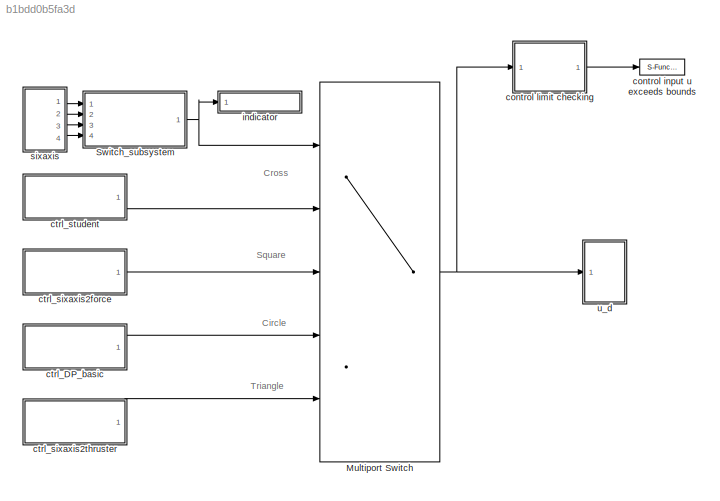
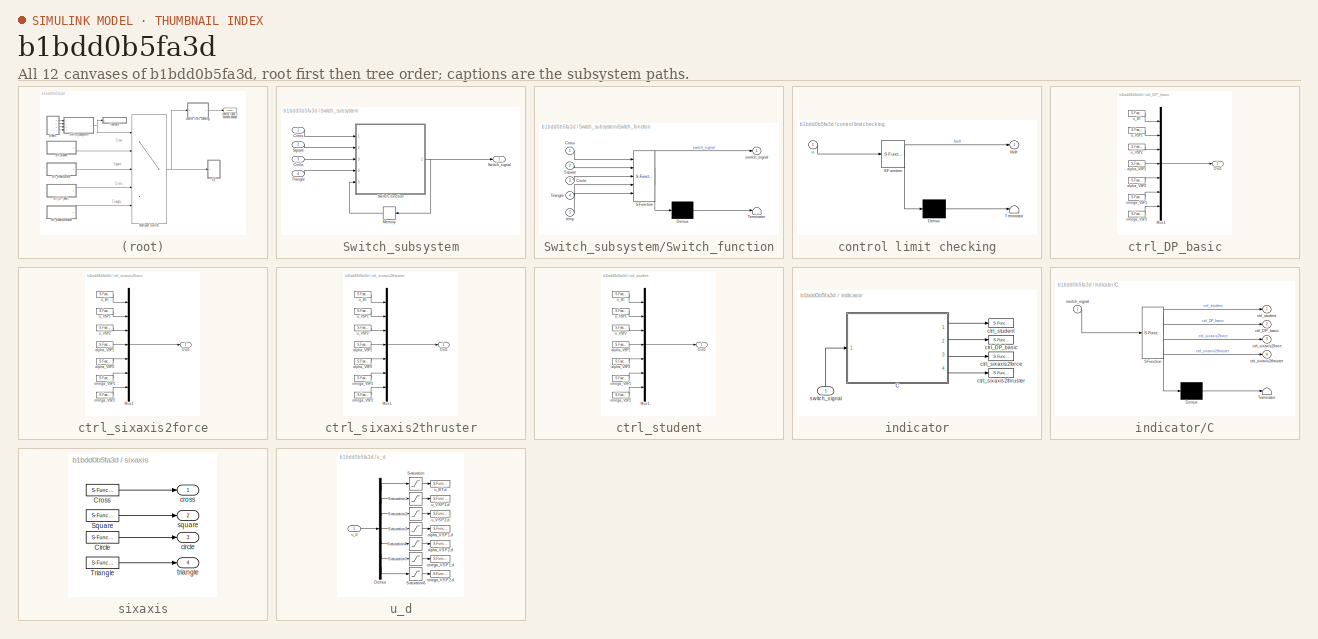
[diagram: thumbnail index - all 12 canvases of the model, root first then tree order]
MODEL slx_b1bdd0b5fa3d
KIND model
BLOCK [MultiPortSwitch] Multiport Switch
  InputSameDT = off
  Inputs = 4
  Ports = [5, 1]
  SaturateOnIntegerOverflow = off
BLOCK [SubSystem] Switch_subsystem
  Ports = [4, 1]
  RequestExecContextInheritance = off
BLOCK [Inport] Switch_subsystem/Circle
  IconDisplay = Port number
  Port = 3
BLOCK [Inport] Switch_subsystem/Cross
  IconDisplay = Port number
BLOCK [Memory] Switch_subsystem/Memory
  X0 = 4
BLOCK [Inport] Switch_subsystem/Square
  IconDisplay = Port number
  Port = 2
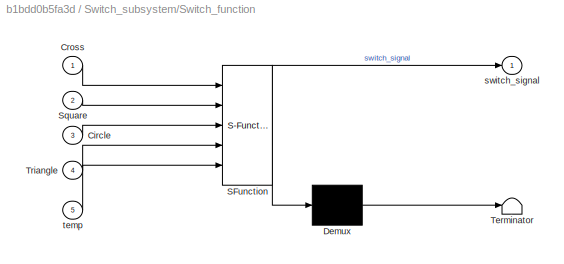
BLOCK [SubSystem] Switch_subsystem/Switch_function
  ErrorFcn = Stateflow.Translate.translate
  PermitHierarchicalResolution = ExplicitOnly
  Ports = [5, 1]
  RequestExecContextInheritance = off
  SFBlockType = MATLAB Function
  TreatAsAtomicUnit = on
BLOCK [Demux] Switch_subsystem/Switch_function/ Demux 
  Outputs = 1
  Ports = [1, 1]
BLOCK [S-Function] Switch_subsystem/Switch_function/ SFunction 
  EnableBusSupport = on
  FunctionName = sf_sfun
  PortCounts = [5 2]
  Ports = [5, 2]
  Tag = Stateflow S-Function ctrl_switch 2
BLOCK [Terminator] Switch_subsystem/Switch_function/ Terminator 
BLOCK [Inport] Switch_subsystem/Switch_function/Circle
  IconDisplay = Port number
  Port = 3
BLOCK [Inport] Switch_subsystem/Switch_function/Cross
  IconDisplay = Port number
BLOCK [Inport] Switch_subsystem/Switch_function/Square
  IconDisplay = Port number
  Port = 2
BLOCK [Inport] Switch_subsystem/Switch_function/Triangle
  IconDisplay = Port number
  Port = 4
BLOCK [Outport] Switch_subsystem/Switch_function/switch_signal
  IconDisplay = Port number
BLOCK [Inport] Switch_subsystem/Switch_function/temp
  IconDisplay = Port number
  Port = 5
BLOCK [Outport] Switch_subsystem/Switch_signal
  IconDisplay = Port number
BLOCK [Inport] Switch_subsystem/Triangle
  IconDisplay = Port number
  Port = 4
BLOCK [S-Function] control input u exceeds bounds
  CopyFcn = NIVeriStand_MDL_functions('', 'IO_copy');
  DeleteFcn = NIVeriStand_MDL_functions('', 'IO_delete');
  EnableBusSupport = off
  FunctionName = NIVeriStandIO
  MoveFcn = set_param(gcb, 'Mask', 'on');
  Parameters = width dtype portnum stime stype btype
  Ports = [1]
  Priority = 8
BLOCK [SubSystem] control limit checking
  ErrorFcn = Stateflow.Translate.translate
  PermitHierarchicalResolution = ExplicitOnly
  Ports = [1, 1]
  RequestExecContextInheritance = off
  SFBlockType = MATLAB Function
  TreatAsAtomicUnit = on
BLOCK [Demux] control limit checking/ Demux 
  Outputs = 1
  Ports = [1, 1]
BLOCK [S-Function] control limit checking/ SFunction 
  EnableBusSupport = on
  FunctionName = sf_sfun
  PortCounts = [1 2]
  Ports = [1, 2]
  Tag = Stateflow S-Function ctrl_switch 3
BLOCK [Terminator] control limit checking/ Terminator 
BLOCK [Outport] control limit checking/fault
  IconDisplay = Port number
BLOCK [Inport] control limit checking/u
  IconDisplay = Port number
BLOCK [SubSystem] ctrl_DP_basic
  Ports = [0, 1]
  RequestExecContextInheritance = off
BLOCK [Mux] ctrl_DP_basic/Mux1
  DisplayOption = bar
  Inputs = 7
  Ports = [7, 1]
BLOCK [Outport] ctrl_DP_basic/Out1
  IconDisplay = Port number
BLOCK [S-Function] ctrl_DP_basic/alpha_VSP1
  CopyFcn = NIVeriStand_MDL_functions('', 'IO_copy');
  DeleteFcn = NIVeriStand_MDL_functions('', 'IO_delete');
  EnableBusSupport = off
  FunctionName = NIVeriStandIO
  MoveFcn = set_param(gcb, 'Mask', 'on');
  Parameters = width dtype portnum stime stype btype
  Ports = [0, 1]
  Priority = 6
BLOCK [S-Function] ctrl_DP_basic/alpha_VSP2
  CopyFcn = NIVeriStand_MDL_functions('', 'IO_copy');
  DeleteFcn = NIVeriStand_MDL_functions('', 'IO_delete');
  EnableBusSupport = off
  FunctionName = NIVeriStandIO
  MoveFcn = set_param(gcb, 'Mask', 'on');
  Parameters = width dtype portnum stime stype btype
  Ports = [0, 1]
  Priority = 7
BLOCK [S-Function] ctrl_DP_basic/omega_VSP1
  CopyFcn = NIVeriStand_MDL_functions('', 'IO_copy');
  DeleteFcn = NIVeriStand_MDL_functions('', 'IO_delete');
  EnableBusSupport = off
  FunctionName = NIVeriStandIO
  MoveFcn = set_param(gcb, 'Mask', 'on');
  Parameters = width dtype portnum stime stype btype
  Ports = [0, 1]
  Priority = 3
BLOCK [S-Function] ctrl_DP_basic/omega_VSP2
  CopyFcn = NIVeriStand_MDL_functions('', 'IO_copy');
  DeleteFcn = NIVeriStand_MDL_functions('', 'IO_delete');
  EnableBusSupport = off
  FunctionName = NIVeriStandIO
  MoveFcn = set_param(gcb, 'Mask', 'on');
  Parameters = width dtype portnum stime stype btype
  Ports = [0, 1]
  Priority = 4
BLOCK [S-Function] ctrl_DP_basic/u_BT
  CopyFcn = NIVeriStand_MDL_functions('', 'IO_copy');
  DeleteFcn = NIVeriStand_MDL_functions('', 'IO_delete');
  EnableBusSupport = off
  FunctionName = NIVeriStandIO
  MoveFcn = set_param(gcb, 'Mask', 'on');
  Parameters = width dtype portnum stime stype btype
  Ports = [0, 1]
  Priority = 1
BLOCK [S-Function] ctrl_DP_basic/u_VSP1
  CopyFcn = NIVeriStand_MDL_functions('', 'IO_copy');
  DeleteFcn = NIVeriStand_MDL_functions('', 'IO_delete');
  EnableBusSupport = off
  FunctionName = NIVeriStandIO
  MoveFcn = set_param(gcb, 'Mask', 'on');
  Parameters = width dtype portnum stime stype btype
  Ports = [0, 1]
  Priority = 5
BLOCK [S-Function] ctrl_DP_basic/u_VSP2
  CopyFcn = NIVeriStand_MDL_functions('', 'IO_copy');
  DeleteFcn = NIVeriStand_MDL_functions('', 'IO_delete');
  EnableBusSupport = off
  FunctionName = NIVeriStandIO
  MoveFcn = set_param(gcb, 'Mask', 'on');
  Parameters = width dtype portnum stime stype btype
  Ports = [0, 1]
  Priority = 2
BLOCK [SubSystem] ctrl_sixaxis2force
  Ports = [0, 1]
  RequestExecContextInheritance = off
BLOCK [Mux] ctrl_sixaxis2force/Mux1
  DisplayOption = bar
  Inputs = 7
  Ports = [7, 1]
BLOCK [Outport] ctrl_sixaxis2force/Out1
  IconDisplay = Port number
BLOCK [S-Function] ctrl_sixaxis2force/alpha_VSP1
  CopyFcn = NIVeriStand_MDL_functions('', 'IO_copy');
  DeleteFcn = NIVeriStand_MDL_functions('', 'IO_delete');
  EnableBusSupport = off
  FunctionName = NIVeriStandIO
  MoveFcn = set_param(gcb, 'Mask', 'on');
  Parameters = width dtype portnum stime stype btype
  Ports = [0, 1]
  Priority = 6
BLOCK [S-Function] ctrl_sixaxis2force/alpha_VSP2
  CopyFcn = NIVeriStand_MDL_functions('', 'IO_copy');
  DeleteFcn = NIVeriStand_MDL_functions('', 'IO_delete');
  EnableBusSupport = off
  FunctionName = NIVeriStandIO
  MoveFcn = set_param(gcb, 'Mask', 'on');
  Parameters = width dtype portnum stime stype btype
  Ports = [0, 1]
  Priority = 7
BLOCK [S-Function] ctrl_sixaxis2force/omega_VSP1
  CopyFcn = NIVeriStand_MDL_functions('', 'IO_copy');
  DeleteFcn = NIVeriStand_MDL_functions('', 'IO_delete');
  EnableBusSupport = off
  FunctionName = NIVeriStandIO
  MoveFcn = set_param(gcb, 'Mask', 'on');
  Parameters = width dtype portnum stime stype btype
  Ports = [0, 1]
  Priority = 3
BLOCK [S-Function] ctrl_sixaxis2force/omega_VSP2
  CopyFcn = NIVeriStand_MDL_functions('', 'IO_copy');
  DeleteFcn = NIVeriStand_MDL_functions('', 'IO_delete');
  EnableBusSupport = off
  FunctionName = NIVeriStandIO
  MoveFcn = set_param(gcb, 'Mask', 'on');
  Parameters = width dtype portnum stime stype btype
  Ports = [0, 1]
  Priority = 4
BLOCK [S-Function] ctrl_sixaxis2force/u_BT
  CopyFcn = NIVeriStand_MDL_functions('', 'IO_copy');
  DeleteFcn = NIVeriStand_MDL_functions('', 'IO_delete');
  EnableBusSupport = off
  FunctionName = NIVeriStandIO
  MoveFcn = set_param(gcb, 'Mask', 'on');
  Parameters = width dtype portnum stime stype btype
  Ports = [0, 1]
  Priority = 1
BLOCK [S-Function] ctrl_sixaxis2force/u_VSP1
  CopyFcn = NIVeriStand_MDL_functions('', 'IO_copy');
  DeleteFcn = NIVeriStand_MDL_functions('', 'IO_delete');
  EnableBusSupport = off
  FunctionName = NIVeriStandIO
  MoveFcn = set_param(gcb, 'Mask', 'on');
  Parameters = width dtype portnum stime stype btype
  Ports = [0, 1]
  Priority = 5
BLOCK [S-Function] ctrl_sixaxis2force/u_VSP2
  CopyFcn = NIVeriStand_MDL_functions('', 'IO_copy');
  DeleteFcn = NIVeriStand_MDL_functions('', 'IO_delete');
  EnableBusSupport = off
  FunctionName = NIVeriStandIO
  MoveFcn = set_param(gcb, 'Mask', 'on');
  Parameters = width dtype portnum stime stype btype
  Ports = [0, 1]
  Priority = 2
BLOCK [SubSystem] ctrl_sixaxis2thruster
  Ports = [0, 1]
  RequestExecContextInheritance = off
BLOCK [Mux] ctrl_sixaxis2thruster/Mux1
  DisplayOption = bar
  Inputs = 7
  Ports = [7, 1]
BLOCK [Outport] ctrl_sixaxis2thruster/Out1
  IconDisplay = Port number
BLOCK [S-Function] ctrl_sixaxis2thruster/alpha_VSP1
  CopyFcn = NIVeriStand_MDL_functions('', 'IO_copy');
  DeleteFcn = NIVeriStand_MDL_functions('', 'IO_delete');
  EnableBusSupport = off
  FunctionName = NIVeriStandIO
  MoveFcn = set_param(gcb, 'Mask', 'on');
  Parameters = width dtype portnum stime stype btype
  Ports = [0, 1]
  Priority = 6
BLOCK [S-Function] ctrl_sixaxis2thruster/alpha_VSP2
  CopyFcn = NIVeriStand_MDL_functions('', 'IO_copy');
  DeleteFcn = NIVeriStand_MDL_functions('', 'IO_delete');
  EnableBusSupport = off
  FunctionName = NIVeriStandIO
  MoveFcn = set_param(gcb, 'Mask', 'on');
  Parameters = width dtype portnum stime stype btype
  Ports = [0, 1]
  Priority = 7
BLOCK [S-Function] ctrl_sixaxis2thruster/omega_VSP1
  CopyFcn = NIVeriStand_MDL_functions('', 'IO_copy');
  DeleteFcn = NIVeriStand_MDL_functions('', 'IO_delete');
  EnableBusSupport = off
  FunctionName = NIVeriStandIO
  MoveFcn = set_param(gcb, 'Mask', 'on');
  Parameters = width dtype portnum stime stype btype
  Ports = [0, 1]
  Priority = 3
BLOCK [S-Function] ctrl_sixaxis2thruster/omega_VSP2
  CopyFcn = NIVeriStand_MDL_functions('', 'IO_copy');
  DeleteFcn = NIVeriStand_MDL_functions('', 'IO_delete');
  EnableBusSupport = off
  FunctionName = NIVeriStandIO
  MoveFcn = set_param(gcb, 'Mask', 'on');
  Parameters = width dtype portnum stime stype btype
  Ports = [0, 1]
  Priority = 4
BLOCK [S-Function] ctrl_sixaxis2thruster/u_BT
  CopyFcn = NIVeriStand_MDL_functions('', 'IO_copy');
  DeleteFcn = NIVeriStand_MDL_functions('', 'IO_delete');
  EnableBusSupport = off
  FunctionName = NIVeriStandIO
  MoveFcn = set_param(gcb, 'Mask', 'on');
  Parameters = width dtype portnum stime stype btype
  Ports = [0, 1]
  Priority = 1
BLOCK [S-Function] ctrl_sixaxis2thruster/u_VSP1
  CopyFcn = NIVeriStand_MDL_functions('', 'IO_copy');
  DeleteFcn = NIVeriStand_MDL_functions('', 'IO_delete');
  EnableBusSupport = off
  FunctionName = NIVeriStandIO
  MoveFcn = set_param(gcb, 'Mask', 'on');
  Parameters = width dtype portnum stime stype btype
  Ports = [0, 1]
  Priority = 5
BLOCK [S-Function] ctrl_sixaxis2thruster/u_VSP2
  CopyFcn = NIVeriStand_MDL_functions('', 'IO_copy');
  DeleteFcn = NIVeriStand_MDL_functions('', 'IO_delete');
  EnableBusSupport = off
  FunctionName = NIVeriStandIO
  MoveFcn = set_param(gcb, 'Mask', 'on');
  Parameters = width dtype portnum stime stype btype
  Ports = [0, 1]
  Priority = 2
BLOCK [SubSystem] ctrl_student
  Ports = [0, 1]
  RequestExecContextInheritance = off
BLOCK [Mux] ctrl_student/Mux1
  DisplayOption = bar
  Inputs = 7
  Ports = [7, 1]
BLOCK [Outport] ctrl_student/Out1
  IconDisplay = Port number
BLOCK [S-Function] ctrl_student/alpha_VSP1
  CopyFcn = NIVeriStand_MDL_functions('', 'IO_copy');
  DeleteFcn = NIVeriStand_MDL_functions('', 'IO_delete');
  EnableBusSupport = off
  FunctionName = NIVeriStandIO
  MoveFcn = set_param(gcb, 'Mask', 'on');
  Parameters = width dtype portnum stime stype btype
  Ports = [0, 1]
  Priority = 6
BLOCK [S-Function] ctrl_student/alpha_VSP2
  CopyFcn = NIVeriStand_MDL_functions('', 'IO_copy');
  DeleteFcn = NIVeriStand_MDL_functions('', 'IO_delete');
  EnableBusSupport = off
  FunctionName = NIVeriStandIO
  MoveFcn = set_param(gcb, 'Mask', 'on');
  Parameters = width dtype portnum stime stype btype
  Ports = [0, 1]
  Priority = 7
BLOCK [S-Function] ctrl_student/omega_VSP1
  CopyFcn = NIVeriStand_MDL_functions('', 'IO_copy');
  DeleteFcn = NIVeriStand_MDL_functions('', 'IO_delete');
  EnableBusSupport = off
  FunctionName = NIVeriStandIO
  MoveFcn = set_param(gcb, 'Mask', 'on');
  Parameters = width dtype portnum stime stype btype
  Ports = [0, 1]
  Priority = 3
BLOCK [S-Function] ctrl_student/omega_VSP2
  CopyFcn = NIVeriStand_MDL_functions('', 'IO_copy');
  DeleteFcn = NIVeriStand_MDL_functions('', 'IO_delete');
  EnableBusSupport = off
  FunctionName = NIVeriStandIO
  MoveFcn = set_param(gcb, 'Mask', 'on');
  Parameters = width dtype portnum stime stype btype
  Ports = [0, 1]
  Priority = 4
BLOCK [S-Function] ctrl_student/u_BT
  CopyFcn = NIVeriStand_MDL_functions('', 'IO_copy');
  DeleteFcn = NIVeriStand_MDL_functions('', 'IO_delete');
  EnableBusSupport = off
  FunctionName = NIVeriStandIO
  MoveFcn = set_param(gcb, 'Mask', 'on');
  Parameters = width dtype portnum stime stype btype
  Ports = [0, 1]
  Priority = 1
BLOCK [S-Function] ctrl_student/u_VSP1
  CopyFcn = NIVeriStand_MDL_functions('', 'IO_copy');
  DeleteFcn = NIVeriStand_MDL_functions('', 'IO_delete');
  EnableBusSupport = off
  FunctionName = NIVeriStandIO
  MoveFcn = set_param(gcb, 'Mask', 'on');
  Parameters = width dtype portnum stime stype btype
  Ports = [0, 1]
  Priority = 5
BLOCK [S-Function] ctrl_student/u_VSP2
  CopyFcn = NIVeriStand_MDL_functions('', 'IO_copy');
  DeleteFcn = NIVeriStand_MDL_functions('', 'IO_delete');
  EnableBusSupport = off
  FunctionName = NIVeriStandIO
  MoveFcn = set_param(gcb, 'Mask', 'on');
  Parameters = width dtype portnum stime stype btype
  Ports = [0, 1]
  Priority = 2
BLOCK [SubSystem] indicator
  Ports = [1]
  RequestExecContextInheritance = off
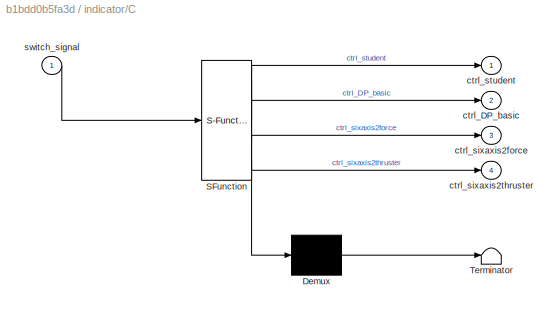
BLOCK [SubSystem] indicator/C
  ErrorFcn = Stateflow.Translate.translate
  PermitHierarchicalResolution = ExplicitOnly
  Ports = [1, 4]
  RequestExecContextInheritance = off
  SFBlockType = MATLAB Function
  TreatAsAtomicUnit = on
BLOCK [Demux] indicator/C/ Demux 
  Outputs = 1
  Ports = [1, 1]
BLOCK [S-Function] indicator/C/ SFunction 
  EnableBusSupport = on
  FunctionName = sf_sfun
  PortCounts = [1 5]
  Ports = [1, 5]
  Tag = Stateflow S-Function ctrl_switch 1
BLOCK [Terminator] indicator/C/ Terminator 
BLOCK [Outport] indicator/C/ctrl_DP_basic
  IconDisplay = Port number
  Port = 2
BLOCK [Outport] indicator/C/ctrl_sixaxis2force
  IconDisplay = Port number
  Port = 3
BLOCK [Outport] indicator/C/ctrl_sixaxis2thruster
  IconDisplay = Port number
  Port = 4
BLOCK [Outport] indicator/C/ctrl_student
  IconDisplay = Port number
BLOCK [Inport] indicator/C/switch_signal
  IconDisplay = Port number
BLOCK [S-Function] indicator/ctrl_DP_basic
  CopyFcn = NIVeriStand_MDL_functions('', 'IO_copy');
  DeleteFcn = NIVeriStand_MDL_functions('', 'IO_delete');
  EnableBusSupport = off
  FunctionName = NIVeriStandIO
  MoveFcn = set_param(gcb, 'Mask', 'on');
  Parameters = width dtype portnum stime stype btype
  Ports = [1]
  Priority = 9
BLOCK [S-Function] indicator/ctrl_sixaxis2force
  CopyFcn = NIVeriStand_MDL_functions('', 'IO_copy');
  DeleteFcn = NIVeriStand_MDL_functions('', 'IO_delete');
  EnableBusSupport = off
  FunctionName = NIVeriStandIO
  MoveFcn = set_param(gcb, 'Mask', 'on');
  Parameters = width dtype portnum stime stype btype
  Ports = [1]
  Priority = 10
BLOCK [S-Function] indicator/ctrl_sixaxis2thruster
  CopyFcn = NIVeriStand_MDL_functions('', 'IO_copy');
  DeleteFcn = NIVeriStand_MDL_functions('', 'IO_delete');
  EnableBusSupport = off
  FunctionName = NIVeriStandIO
  MoveFcn = set_param(gcb, 'Mask', 'on');
  Parameters = width dtype portnum stime stype btype
  Ports = [1]
  Priority = 11
BLOCK [S-Function] indicator/ctrl_student
  CopyFcn = NIVeriStand_MDL_functions('', 'IO_copy');
  DeleteFcn = NIVeriStand_MDL_functions('', 'IO_delete');
  EnableBusSupport = off
  FunctionName = NIVeriStandIO
  MoveFcn = set_param(gcb, 'Mask', 'on');
  Parameters = width dtype portnum stime stype btype
  Ports = [1]
  Priority = 8
BLOCK [Inport] indicator/switch_signal
  IconDisplay = Port number
BLOCK [SubSystem] sixaxis
  Ports = [0, 4]
  RequestExecContextInheritance = off
BLOCK [S-Function] sixaxis/Circle
  CopyFcn = NIVeriStand_MDL_functions('', 'IO_copy');
  DeleteFcn = NIVeriStand_MDL_functions('', 'IO_delete');
  EnableBusSupport = off
  FunctionName = NIVeriStandIO
  MoveFcn = set_param(gcb, 'Mask', 'on');
  Parameters = width dtype portnum stime stype btype
  Ports = [0, 1]
  Priority = 2
BLOCK [S-Function] sixaxis/Cross
  CopyFcn = NIVeriStand_MDL_functions('', 'IO_copy');
  DeleteFcn = NIVeriStand_MDL_functions('', 'IO_delete');
  EnableBusSupport = off
  FunctionName = NIVeriStandIO
  MoveFcn = set_param(gcb, 'Mask', 'on');
  Parameters = width dtype portnum stime stype btype
  Ports = [0, 1]
  Priority = 3
BLOCK [S-Function] sixaxis/Square
  CopyFcn = NIVeriStand_MDL_functions('', 'IO_copy');
  DeleteFcn = NIVeriStand_MDL_functions('', 'IO_delete');
  EnableBusSupport = off
  FunctionName = NIVeriStandIO
  MoveFcn = set_param(gcb, 'Mask', 'on');
  Parameters = width dtype portnum stime stype btype
  Ports = [0, 1]
  Priority = 4
BLOCK [S-Function] sixaxis/Triangle
  CopyFcn = NIVeriStand_MDL_functions('', 'IO_copy');
  DeleteFcn = NIVeriStand_MDL_functions('', 'IO_delete');
  EnableBusSupport = off
  FunctionName = NIVeriStandIO
  MoveFcn = set_param(gcb, 'Mask', 'on');
  Parameters = width dtype portnum stime stype btype
  Ports = [0, 1]
  Priority = 1
BLOCK [Outport] sixaxis/circle
  IconDisplay = Port number
  Port = 3
BLOCK [Outport] sixaxis/cross
  IconDisplay = Port number
BLOCK [Outport] sixaxis/square
  IconDisplay = Port number
  Port = 2
BLOCK [Outport] sixaxis/triangle
  IconDisplay = Port number
  Port = 4
BLOCK [SubSystem] u_d
  Ports = [1]
  RequestExecContextInheritance = off
BLOCK [Demux] u_d/Demux
  DisplayOption = bar
  Outputs = 7
  Ports = [1, 7]
BLOCK [Saturate] u_d/Saturation
  InputPortMap = u0
  LowerLimit = -1
  Ports = [1, 1]
  UpperLimit = 1
BLOCK [Saturate] u_d/Saturation1
  InputPortMap = u0
  LowerLimit = 0
  Ports = [1, 1]
  UpperLimit = 1
BLOCK [Saturate] u_d/Saturation2
  InputPortMap = u0
  LowerLimit = 0
  Ports = [1, 1]
  UpperLimit = 1
BLOCK [Saturate] u_d/Saturation3
  InputPortMap = u0
  LowerLimit = -pi
  Ports = [1, 1]
  UpperLimit = pi
BLOCK [Saturate] u_d/Saturation4
  InputPortMap = u0
  LowerLimit = -pi
  Ports = [1, 1]
  UpperLimit = pi
BLOCK [Saturate] u_d/Saturation5
  InputPortMap = u0
  LowerLimit = -1
  Ports = [1, 1]
  UpperLimit = 1
BLOCK [Saturate] u_d/Saturation6
  InputPortMap = u0
  LowerLimit = -1
  Ports = [1, 1]
  UpperLimit = 1
BLOCK [S-Function] u_d/alpha_VSP1,d
  CopyFcn = NIVeriStand_MDL_functions('', 'IO_copy');
  DeleteFcn = NIVeriStand_MDL_functions('', 'IO_delete');
  EnableBusSupport = off
  FunctionName = NIVeriStandIO
  MoveFcn = set_param(gcb, 'Mask', 'on');
  Parameters = width dtype portnum stime stype btype
  Ports = [1]
  Priority = 5
BLOCK [S-Function] u_d/alpha_VSP2,d
  CopyFcn = NIVeriStand_MDL_functions('', 'IO_copy');
  DeleteFcn = NIVeriStand_MDL_functions('', 'IO_delete');
  EnableBusSupport = off
  FunctionName = NIVeriStandIO
  MoveFcn = set_param(gcb, 'Mask', 'on');
  Parameters = width dtype portnum stime stype btype
  Ports = [1]
  Priority = 1
BLOCK [S-Function] u_d/omega_VSP1,d
  CopyFcn = NIVeriStand_MDL_functions('', 'IO_copy');
  DeleteFcn = NIVeriStand_MDL_functions('', 'IO_delete');
  EnableBusSupport = off
  FunctionName = NIVeriStandIO
  MoveFcn = set_param(gcb, 'Mask', 'on');
  Parameters = width dtype portnum stime stype btype
  Ports = [1]
  Priority = 6
BLOCK [S-Function] u_d/omega_VSP2,d
  CopyFcn = NIVeriStand_MDL_functions('', 'IO_copy');
  DeleteFcn = NIVeriStand_MDL_functions('', 'IO_delete');
  EnableBusSupport = off
  FunctionName = NIVeriStandIO
  MoveFcn = set_param(gcb, 'Mask', 'on');
  Parameters = width dtype portnum stime stype btype
  Ports = [1]
  Priority = 7
BLOCK [S-Function] u_d/u_BT,d
  CopyFcn = NIVeriStand_MDL_functions('', 'IO_copy');
  DeleteFcn = NIVeriStand_MDL_functions('', 'IO_delete');
  EnableBusSupport = off
  FunctionName = NIVeriStandIO
  MoveFcn = set_param(gcb, 'Mask', 'on');
  Parameters = width dtype portnum stime stype btype
  Ports = [1]
  Priority = 2
BLOCK [S-Function] u_d/u_VSP1,d
  CopyFcn = NIVeriStand_MDL_functions('', 'IO_copy');
  DeleteFcn = NIVeriStand_MDL_functions('', 'IO_delete');
  EnableBusSupport = off
  FunctionName = NIVeriStandIO
  MoveFcn = set_param(gcb, 'Mask', 'on');
  Parameters = width dtype portnum stime stype btype
  Ports = [1]
  Priority = 3
BLOCK [S-Function] u_d/u_VSP2,d
  CopyFcn = NIVeriStand_MDL_functions('', 'IO_copy');
  DeleteFcn = NIVeriStand_MDL_functions('', 'IO_delete');
  EnableBusSupport = off
  FunctionName = NIVeriStandIO
  MoveFcn = set_param(gcb, 'Mask', 'on');
  Parameters = width dtype portnum stime stype btype
  Ports = [1]
  Priority = 4
BLOCK [Inport] u_d/u_d
  IconDisplay = Port number
ANNOTATION (root): Circle
ANNOTATION (root): Cross
ANNOTATION (root): Square
ANNOTATION (root): Triangle
NET Multiport Switch:1 -> control limit checking:1, u_d:1
LINE Switch_subsystem/Circle:1 -> Switch_subsystem/Switch_function:3
LINE Switch_subsystem/Cross:1 -> Switch_subsystem/Switch_function:1
LINE Switch_subsystem/Memory:1 -> Switch_subsystem/Switch_function:5
LINE Switch_subsystem/Square:1 -> Switch_subsystem/Switch_function:2
NET Switch_subsystem/Switch_function:1 -> Switch_subsystem/Memory:1, Switch_subsystem/Switch_signal:1
LINE Switch_subsystem/Triangle:1 -> Switch_subsystem/Switch_function:4
NET Switch_subsystem:1 -> Multiport Switch:1, indicator:1
LINE control limit checking:1 -> control input u exceeds bounds:1
LINE ctrl_DP_basic/Mux1:1 -> ctrl_DP_basic/Out1:1
LINE ctrl_DP_basic/alpha_VSP1:1 -> ctrl_DP_basic/Mux1:4
LINE ctrl_DP_basic/alpha_VSP2:1 -> ctrl_DP_basic/Mux1:5
LINE ctrl_DP_basic/omega_VSP1:1 -> ctrl_DP_basic/Mux1:6
LINE ctrl_DP_basic/omega_VSP2:1 -> ctrl_DP_basic/Mux1:7
LINE ctrl_DP_basic/u_BT:1 -> ctrl_DP_basic/Mux1:1
LINE ctrl_DP_basic/u_VSP1:1 -> ctrl_DP_basic/Mux1:2
LINE ctrl_DP_basic/u_VSP2:1 -> ctrl_DP_basic/Mux1:3
LINE ctrl_DP_basic:1 -> Multiport Switch:4
LINE ctrl_sixaxis2force/Mux1:1 -> ctrl_sixaxis2force/Out1:1
LINE ctrl_sixaxis2force/alpha_VSP1:1 -> ctrl_sixaxis2force/Mux1:4
LINE ctrl_sixaxis2force/alpha_VSP2:1 -> ctrl_sixaxis2force/Mux1:5
LINE ctrl_sixaxis2force/omega_VSP1:1 -> ctrl_sixaxis2force/Mux1:6
LINE ctrl_sixaxis2force/omega_VSP2:1 -> ctrl_sixaxis2force/Mux1:7
LINE ctrl_sixaxis2force/u_BT:1 -> ctrl_sixaxis2force/Mux1:1
LINE ctrl_sixaxis2force/u_VSP1:1 -> ctrl_sixaxis2force/Mux1:2
LINE ctrl_sixaxis2force/u_VSP2:1 -> ctrl_sixaxis2force/Mux1:3
LINE ctrl_sixaxis2force:1 -> Multiport Switch:3
LINE ctrl_sixaxis2thruster/Mux1:1 -> ctrl_sixaxis2thruster/Out1:1
LINE ctrl_sixaxis2thruster/alpha_VSP1:1 -> ctrl_sixaxis2thruster/Mux1:4
LINE ctrl_sixaxis2thruster/alpha_VSP2:1 -> ctrl_sixaxis2thruster/Mux1:5
LINE ctrl_sixaxis2thruster/omega_VSP1:1 -> ctrl_sixaxis2thruster/Mux1:6
LINE ctrl_sixaxis2thruster/omega_VSP2:1 -> ctrl_sixaxis2thruster/Mux1:7
LINE ctrl_sixaxis2thruster/u_BT:1 -> ctrl_sixaxis2thruster/Mux1:1
LINE ctrl_sixaxis2thruster/u_VSP1:1 -> ctrl_sixaxis2thruster/Mux1:2
LINE ctrl_sixaxis2thruster/u_VSP2:1 -> ctrl_sixaxis2thruster/Mux1:3
LINE ctrl_sixaxis2thruster:1 -> Multiport Switch:5
LINE ctrl_student/Mux1:1 -> ctrl_student/Out1:1
LINE ctrl_student/alpha_VSP1:1 -> ctrl_student/Mux1:4
LINE ctrl_student/alpha_VSP2:1 -> ctrl_student/Mux1:5
LINE ctrl_student/omega_VSP1:1 -> ctrl_student/Mux1:6
LINE ctrl_student/omega_VSP2:1 -> ctrl_student/Mux1:7
LINE ctrl_student/u_BT:1 -> ctrl_student/Mux1:1
LINE ctrl_student/u_VSP1:1 -> ctrl_student/Mux1:2
LINE ctrl_student/u_VSP2:1 -> ctrl_student/Mux1:3
LINE ctrl_student:1 -> Multiport Switch:2
LINE indicator/C:1 -> indicator/ctrl_student:1
LINE indicator/C:2 -> indicator/ctrl_DP_basic:1
LINE indicator/C:3 -> indicator/ctrl_sixaxis2force:1
LINE indicator/C:4 -> indicator/ctrl_sixaxis2thruster:1
LINE indicator/switch_signal:1 -> indicator/C:1
LINE sixaxis/Circle:1 -> sixaxis/circle:1
LINE sixaxis/Cross:1 -> sixaxis/cross:1
LINE sixaxis/Square:1 -> sixaxis/square:1
LINE sixaxis/Triangle:1 -> sixaxis/triangle:1
LINE sixaxis:1 -> Switch_subsystem:1
LINE sixaxis:2 -> Switch_subsystem:2
LINE sixaxis:3 -> Switch_subsystem:3
LINE sixaxis:4 -> Switch_subsystem:4
LINE u_d/Demux:1 -> u_d/Saturation:1
LINE u_d/Demux:2 -> u_d/Saturation1:1
LINE u_d/Demux:3 -> u_d/Saturation2:1
LINE u_d/Demux:4 -> u_d/Saturation3:1
LINE u_d/Demux:5 -> u_d/Saturation4:1
LINE u_d/Demux:6 -> u_d/Saturation5:1
LINE u_d/Demux:7 -> u_d/Saturation6:1
LINE u_d/Saturation1:1 -> u_d/u_VSP1,d:1
LINE u_d/Saturation2:1 -> u_d/u_VSP2,d:1
LINE u_d/Saturation3:1 -> u_d/alpha_VSP1,d:1
LINE u_d/Saturation4:1 -> u_d/alpha_VSP2,d:1
LINE u_d/Saturation5:1 -> u_d/omega_VSP1,d:1
LINE u_d/Saturation6:1 -> u_d/omega_VSP2,d:1
LINE u_d/Saturation:1 -> u_d/u_BT,d:1
LINE u_d/u_d:1 -> u_d/Demux:1
note: NET lines group one-source signal fan-out (src -> all destinations, sorted); 1:1 wires keep LINE
